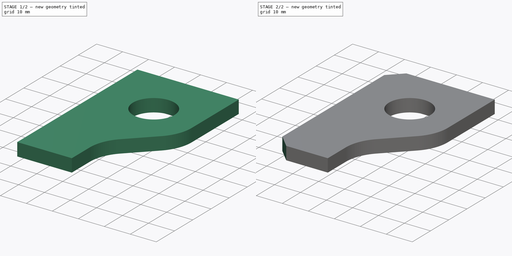
[diagram: build sequence overview — one tinted view per stage of 2, left to right]
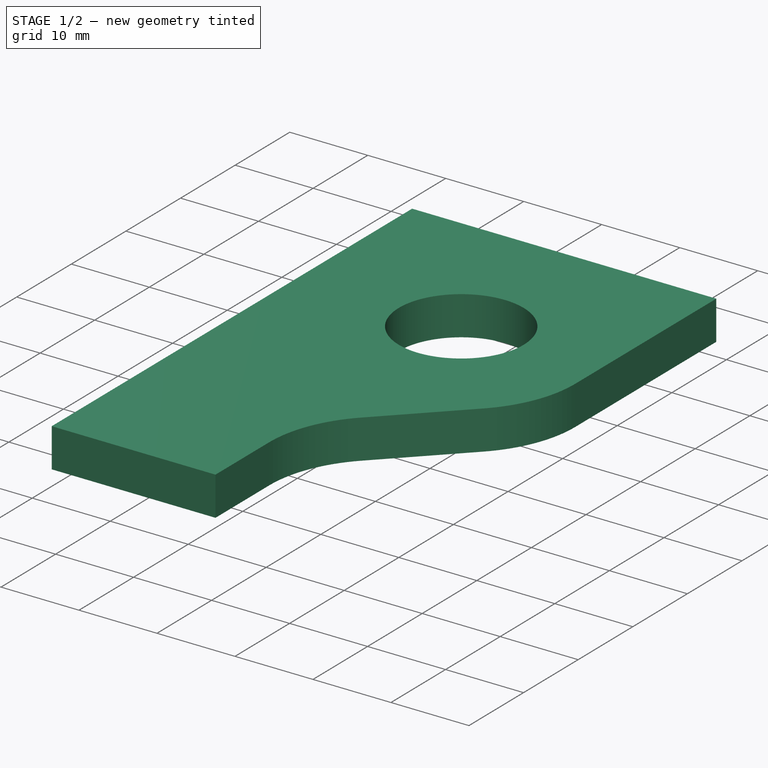
[diagram: stage 1 of 2 — iso view after this stage's code; geometry added in this stage tinted green]
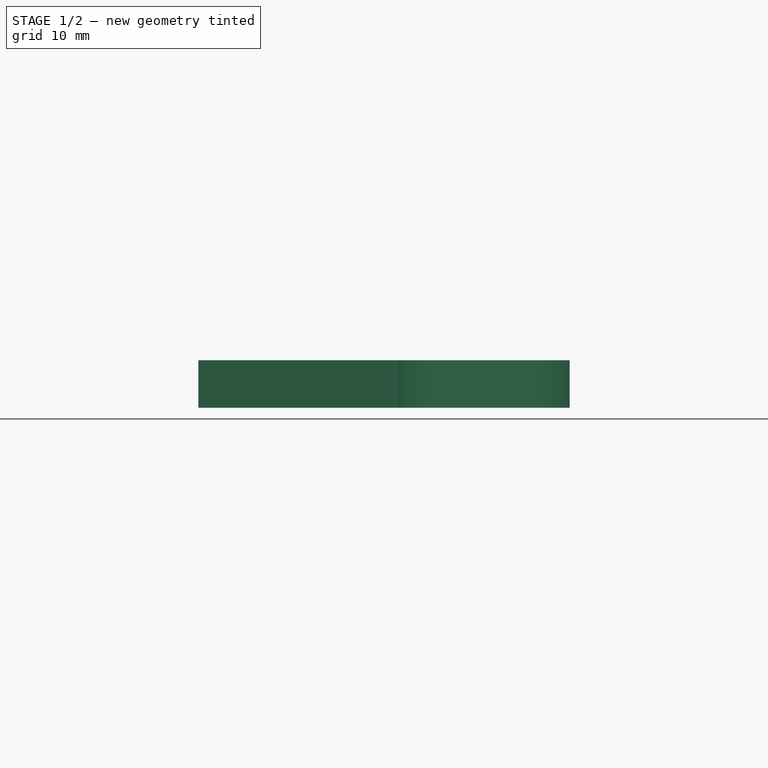
[diagram: stage 1 of 2 — front view after this stage's code; geometry added in this stage tinted green]
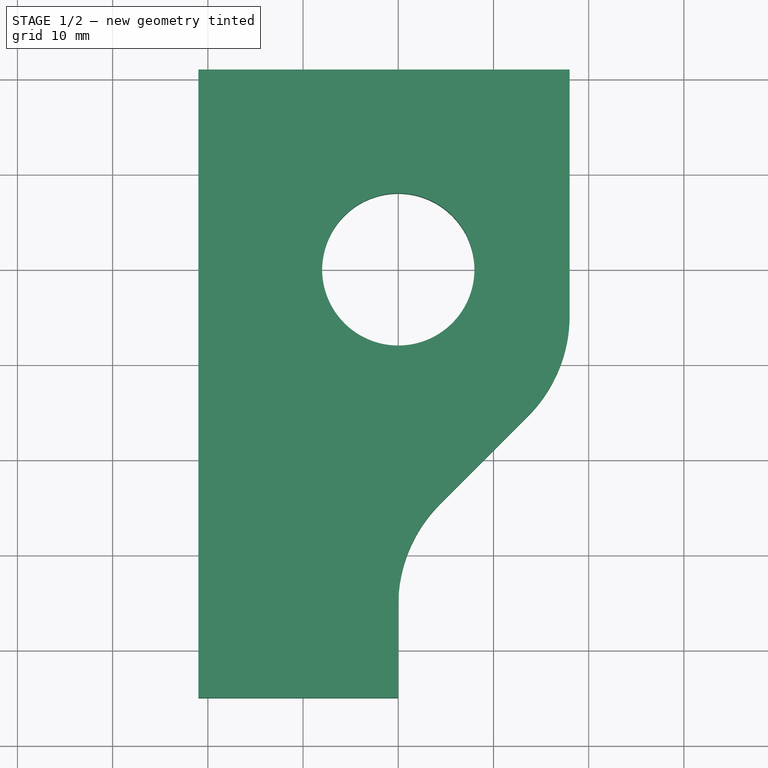
[diagram: stage 1 of 2 — top view after this stage's code; geometry added in this stage tinted green]
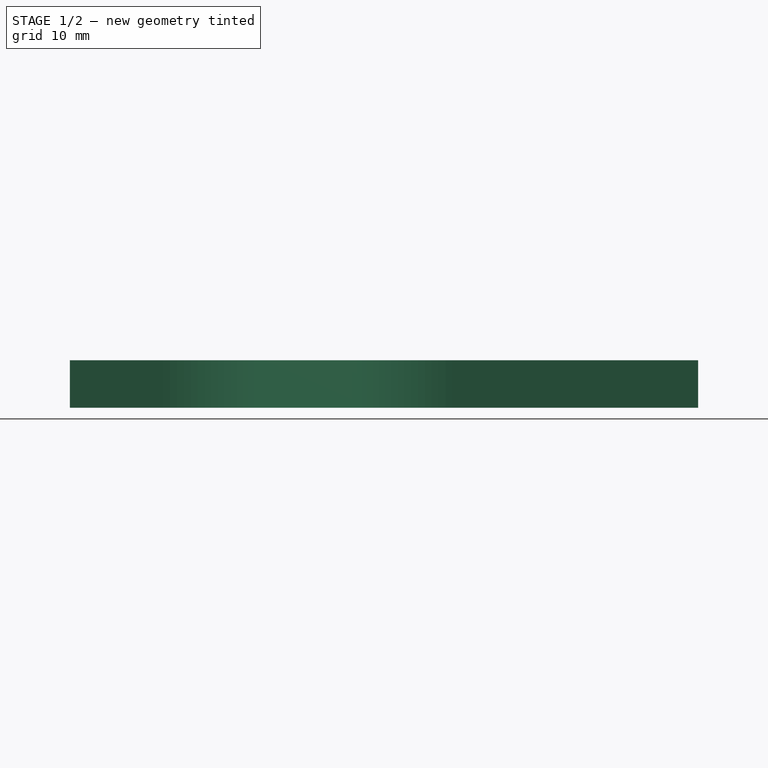
[diagram: stage 1 of 2 — right view after this stage's code; geometry added in this stage tinted green]
FCSTD DOCUMENT  (FreeCAD 0.18R4 (GitTag))
Label: door-hinge-holder
License: All rights reserved
LicenseURL: http://en.wikipedia.org/wiki/All_rights_reserved
objects: Sketcher::SketchObject×1, PartDesign::Pad×1, PartDesign::Chamfer×1, PartDesign::Body×1
note: 5 computed .brp shape members not serialized (recipe doc carries the construction recipe); baked Part::Feature solids carry a one-line shape summary decoded from their .brp

FEATURE [Sketcher::SketchObject] Sketch
  MapMode = 5
  Support = -> [XY_Plane]
  sketch-geometry (9):
    g0: Circle CenterX=0 CenterY=0 CenterZ=0 NormalX=0 NormalY=0 NormalZ=1 AngleXU=0 Radius=8
    g1: LineSegment StartX=18 StartY=21 StartZ=0 EndX=-21 EndY=21 EndZ=0
    g2: LineSegment StartX=-21 StartY=21 StartZ=0 EndX=-21 EndY=-45 EndZ=0
    g3: LineSegment StartX=-21 StartY=-45 StartZ=0 EndX=0 EndY=-45 EndZ=0
    g4: LineSegment StartX=-1.4e-15 StartY=-45 StartZ=0 EndX=-1.4e-15 EndY=-35.213 EndZ=0
    g5: ArcOfCircle CenterX=15 CenterY=-35.213 CenterZ=0 NormalX=0 NormalY=0 NormalZ=1 AngleXU=0 Radius=15 StartAngle=2.35619 EndAngle=3.1416
    g6: LineSegment StartX=4.3934 StartY=-24.6063 StartZ=0 EndX=13.6066 EndY=-15.3931 EndZ=0
    g7: ArcOfCircle CenterX=3 CenterY=-4.78654 CenterZ=0 NormalX=0 NormalY=0 NormalZ=1 AngleXU=0 Radius=15 StartAngle=5.49779 EndAngle=6.28319
    g8: LineSegment StartX=18 StartY=-4.78654 StartZ=0 EndX=18 EndY=21 EndZ=0
  constraints (28):
    c: Coincident(g0,g-1)
    c: Diameter(g0) = 16
    c: Horizontal(g1)
    c: Vertical(g2)
    c: Coincident(g3,g2)
    c: Horizontal(g3)
    c: Coincident(g4,g3)
    c: Vertical(g4)
    c: Coincident(g5,g4)
    c: Coincident(g6,g5)
    c: Coincident(g7,g6)
    c: Coincident(g8,g7)
    c: Vertical(g8)
    c: Coincident(g8,g1)
    c: DistanceY(g0,g1) = 21
    c: Coincident(g2,g1)
    c: DistanceX(g1,g0) = 21
    c: DistanceX(g1,g1) = 39
    c: DistanceY(g2,g0) = 45
    c: Radius(g5) = 15
    c: Radius(g7) = 15
    c: DistanceX(g3,g3) = 21
    c: Tangent(g5,g4)
    c: Tangent(g6,g5)
    c: Tangent(g7,g6)
    c: Tangent(g7,g8)
    c: Angle(g3,g6) = 0.785398
    c: DistanceY(g4,g4) = 9.787
FEATURE [PartDesign::Pad] Pad
  Length = 5
  Length2 = 100
  Profile = -> Sketch
  Refine = true
  Type = 0
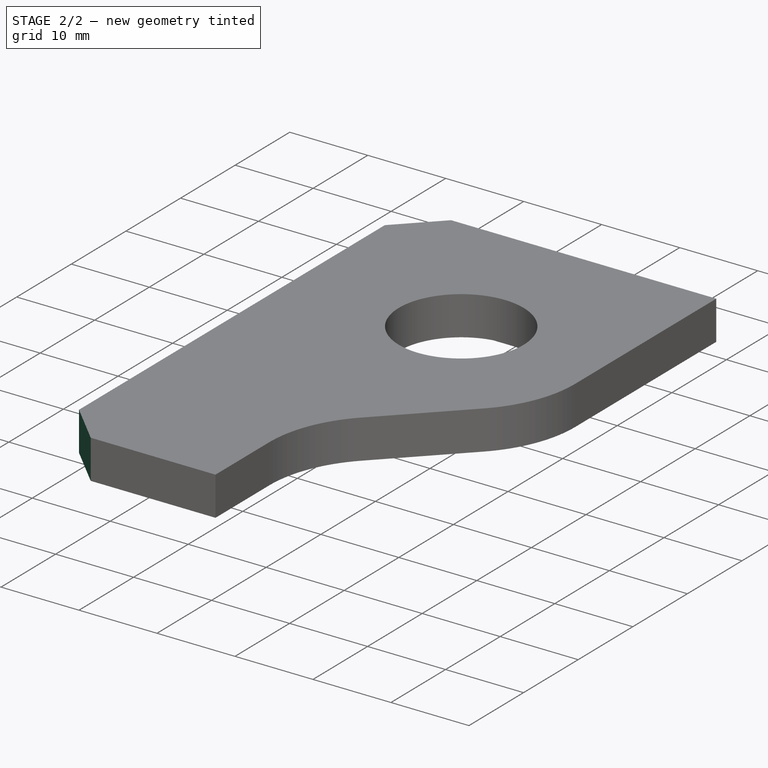
[diagram: stage 2 of 2 — iso view after this stage's code; geometry added in this stage tinted green]
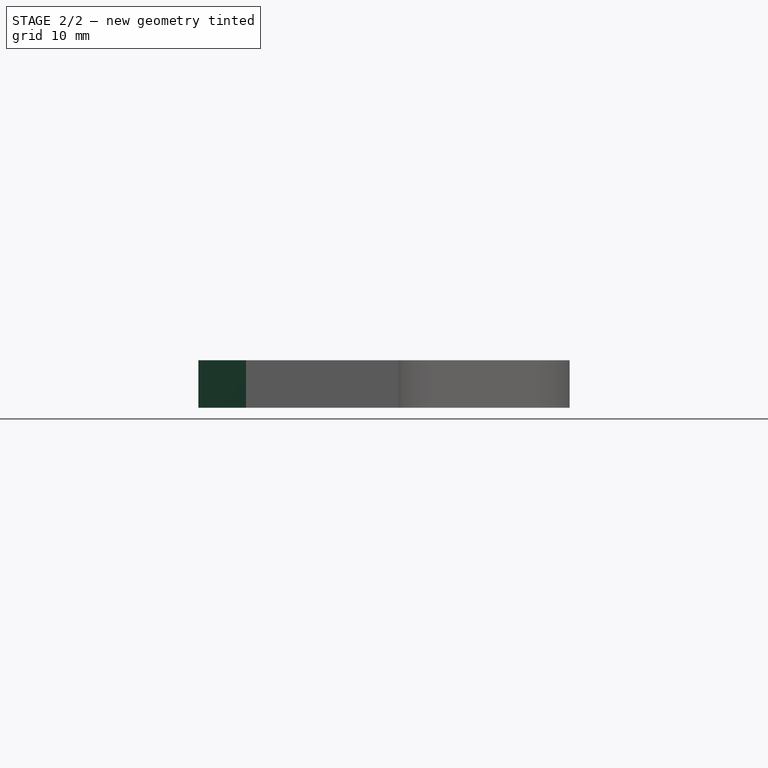
[diagram: stage 2 of 2 — front view after this stage's code; geometry added in this stage tinted green]
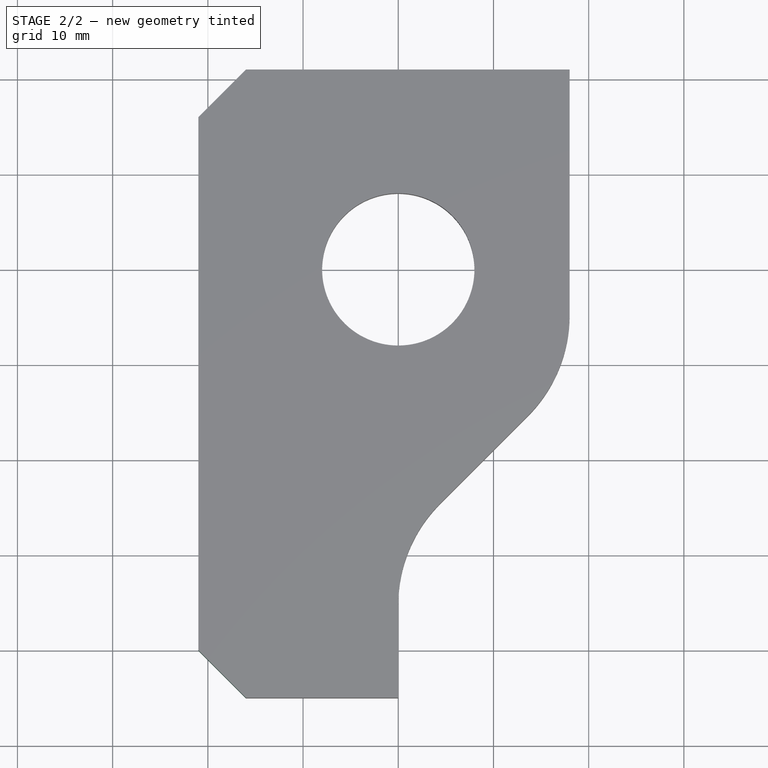
[diagram: stage 2 of 2 — top view after this stage's code; geometry added in this stage tinted green]
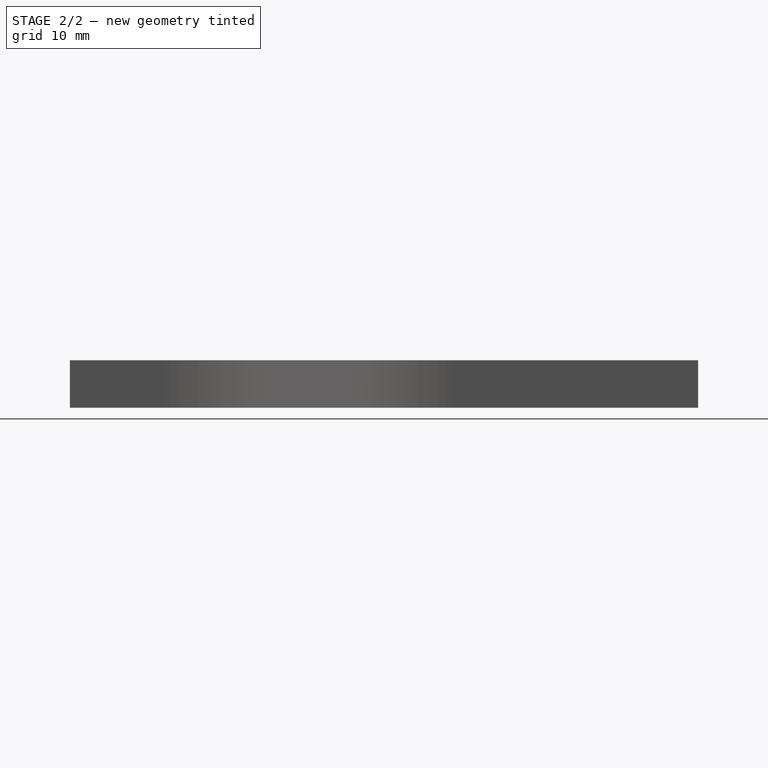
[diagram: stage 2 of 2 — right view after this stage's code; geometry added in this stage tinted green]
FEATURE [PartDesign::Chamfer] Chamfer
  Base = -> Pad [Edge2,Edge5]
  BaseFeature = -> Pad
  Size = 5
FEATURE [PartDesign::Body] Body
  Group = -> [Sketch,Pad,Chamfer]
  Origin = -> Origin
  Tip = -> Chamfer
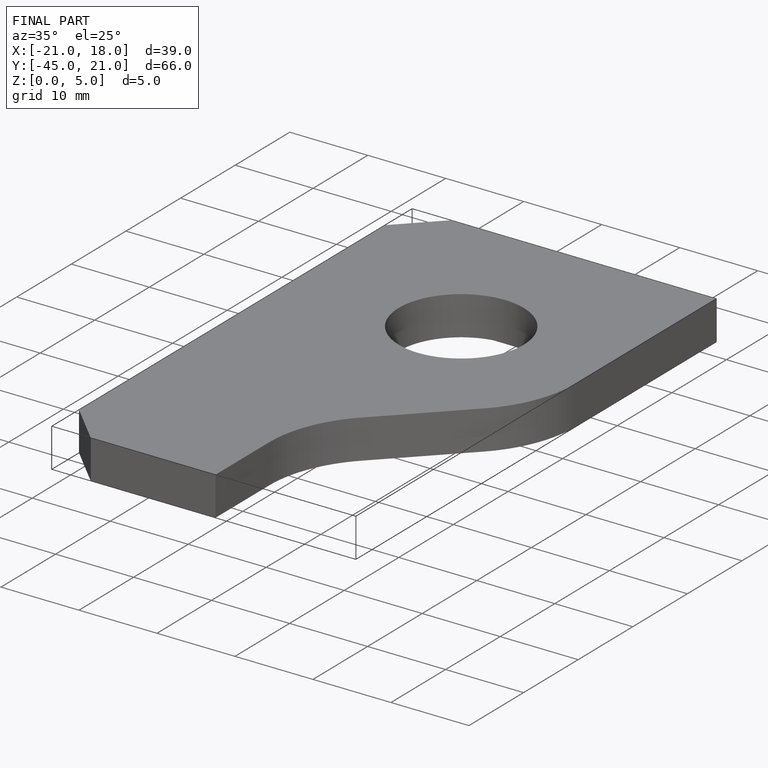
[diagram: finished part — iso view with bounding-box wireframe]
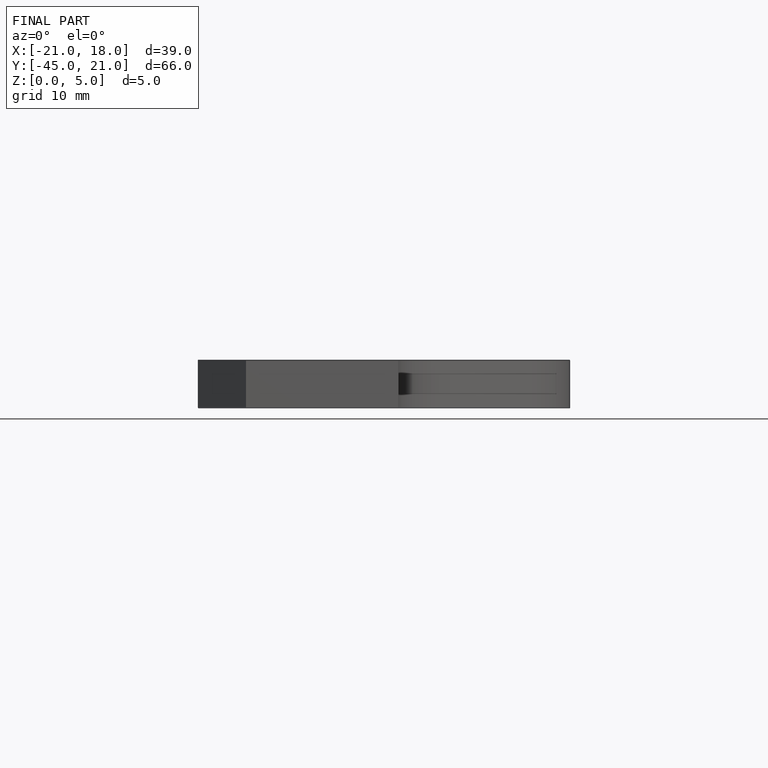
[diagram: finished part — front view with bounding-box wireframe]
